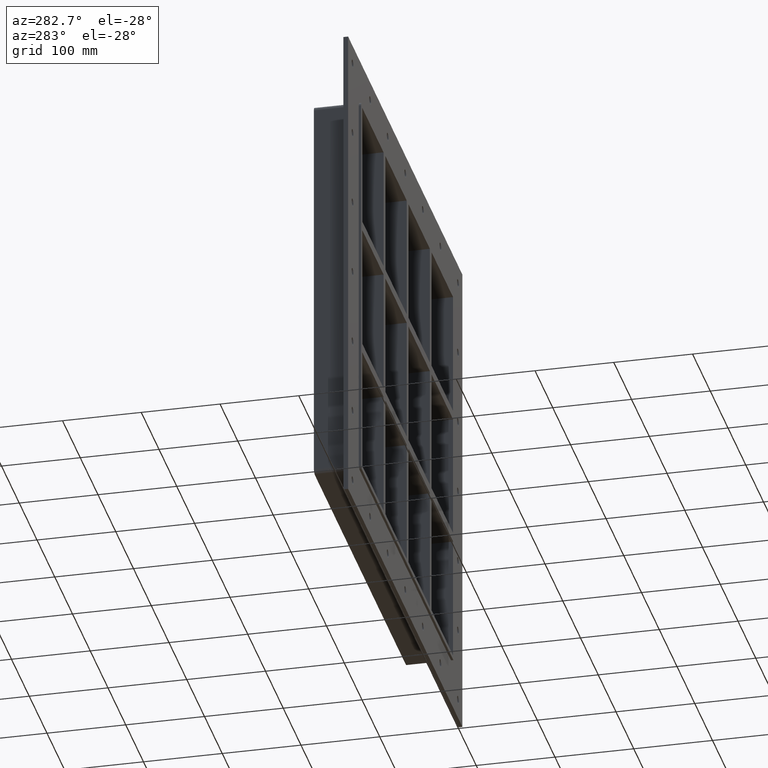
[diagram: clean part render]
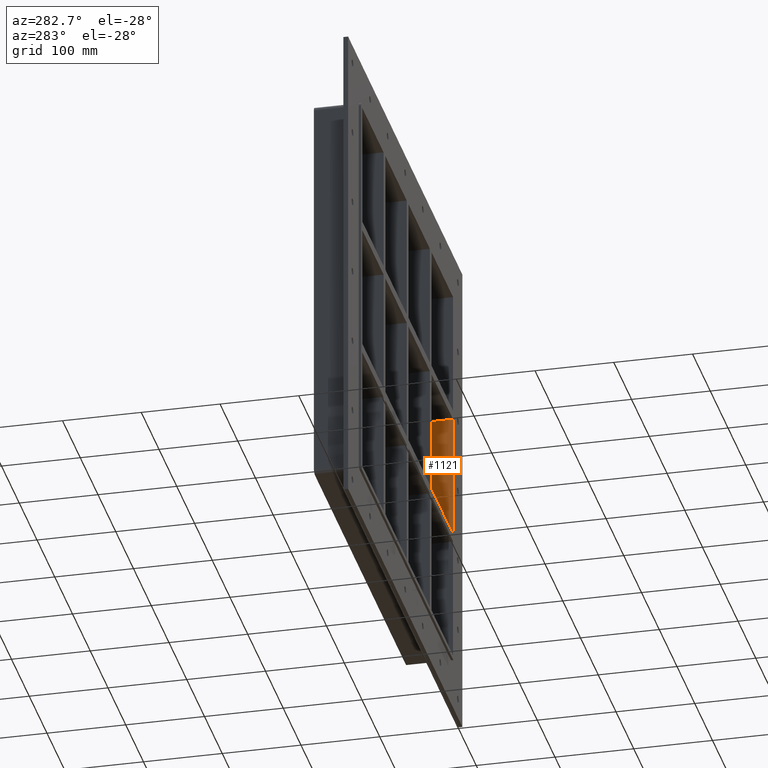
[diagram: same view with one face highlighted and labeled with its STEP entity id]
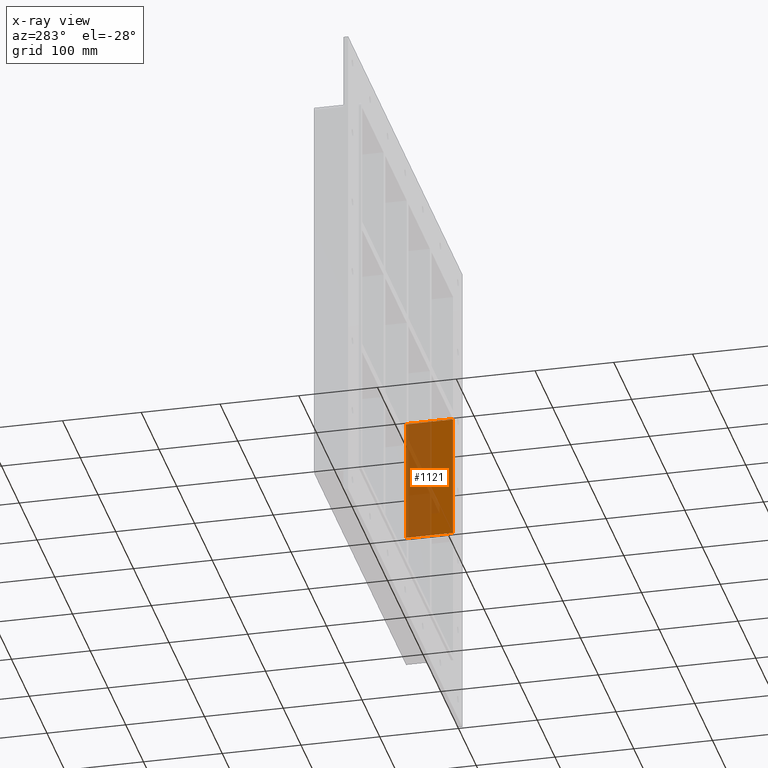
[diagram: x-ray of the same camera — body ghosted, the highlighted face saturated]
A machine part, auxiliary view. The second image highlights one B-rep face of the part: STEP entity #1121.
The next image is the same camera in x-ray: the body ghosted, the highlighted face saturated — about 57% of this face is hidden behind the body in this view.
In plain terms, the highlighted planar face has unit normal (1, 0, 0).
Its self-contained STEP definition (entity closure, byte-faithful):
#835=CARTESIAN_POINT('',(256.00000000000364,57.0,79.749999999990706));
#836=VERTEX_POINT('',#835);
#843=CARTESIAN_POINT('',(256.00000000000364,-3.0,79.749999999990706));
#844=VERTEX_POINT('',#843);
#845=CARTESIAN_POINT('',(256.0,-3.0,79.749999999990706));
#846=DIRECTION('',(0.0,1.0,0.0));
#847=VECTOR('',#846,60.000000000000007);
#848=LINE('',#845,#847);
#849=EDGE_CURVE('',#844,#836,#848,.T.);
#1091=CARTESIAN_POINT('',(256.0,0.0,251.25));
#1092=DIRECTION('',(1.0,0.0,0.0));
#1093=DIRECTION('',(0.0,0.0,-1.0));
#1094=AXIS2_PLACEMENT_3D('',#1091,#1092,#1093);
#1095=PLANE('',#1094);
#1096=ORIENTED_EDGE('',*,*,#849,.T.);
#1097=CARTESIAN_POINT('',(255.99999999999989,57.0,-79.749999999999943));
#1098=VERTEX_POINT('',#1097);
#1099=CARTESIAN_POINT('',(256.0,57.0,-79.749999999999943));
#1100=DIRECTION('',(0.0,0.0,1.0));
#1101=VECTOR('',#1100,159.49999999999065);
#1102=LINE('',#1099,#1101);
#1103=EDGE_CURVE('',#1098,#836,#1102,.T.);
#1104=ORIENTED_EDGE('',*,*,#1103,.F.);
#1105=CARTESIAN_POINT('',(255.99999999999991,-3.0,-79.749999999999943));
#1106=VERTEX_POINT('',#1105);
#1107=CARTESIAN_POINT('',(256.0,57.000000000000007,-79.749999999999943));
#1108=DIRECTION('',(0.0,-1.0,0.0));
#1109=VECTOR('',#1108,60.000000000000007);
#1110=LINE('',#1107,#1109);
#1111=EDGE_CURVE('',#1098,#1106,#1110,.T.);
#1112=ORIENTED_EDGE('',*,*,#1111,.T.);
#1113=CARTESIAN_POINT('',(256.0,-3.0,79.749999999990706));
#1114=DIRECTION('',(0.0,0.0,-1.0));
#1115=VECTOR('',#1114,159.49999999999065);
#1116=LINE('',#1113,#1115);
#1117=EDGE_CURVE('',#844,#1106,#1116,.T.);
#1118=ORIENTED_EDGE('',*,*,#1117,.F.);
#1119=EDGE_LOOP('',(#1096,#1104,#1112,#1118));
#1120=FACE_OUTER_BOUND('',#1119,.T.);
#1121=ADVANCED_FACE('',(#1120),#1095,.F.);